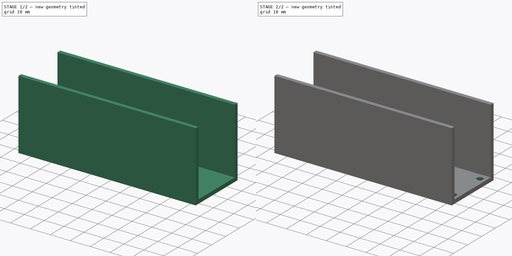
[diagram: build sequence overview — one tinted view per stage of 2, left to right]
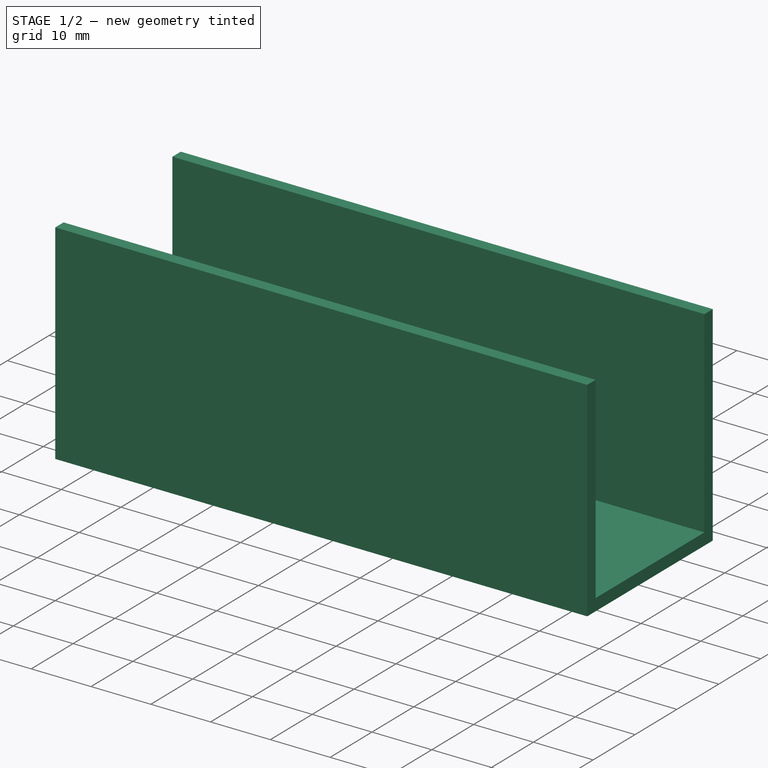
[diagram: stage 1 of 2 — iso view after this stage's code; geometry added in this stage tinted green]
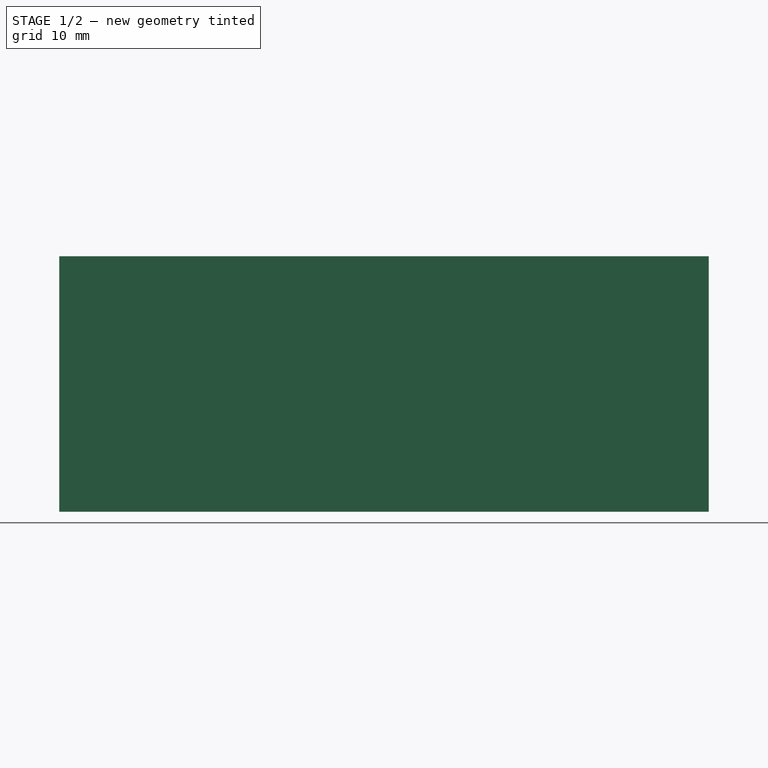
[diagram: stage 1 of 2 — front view after this stage's code; geometry added in this stage tinted green]
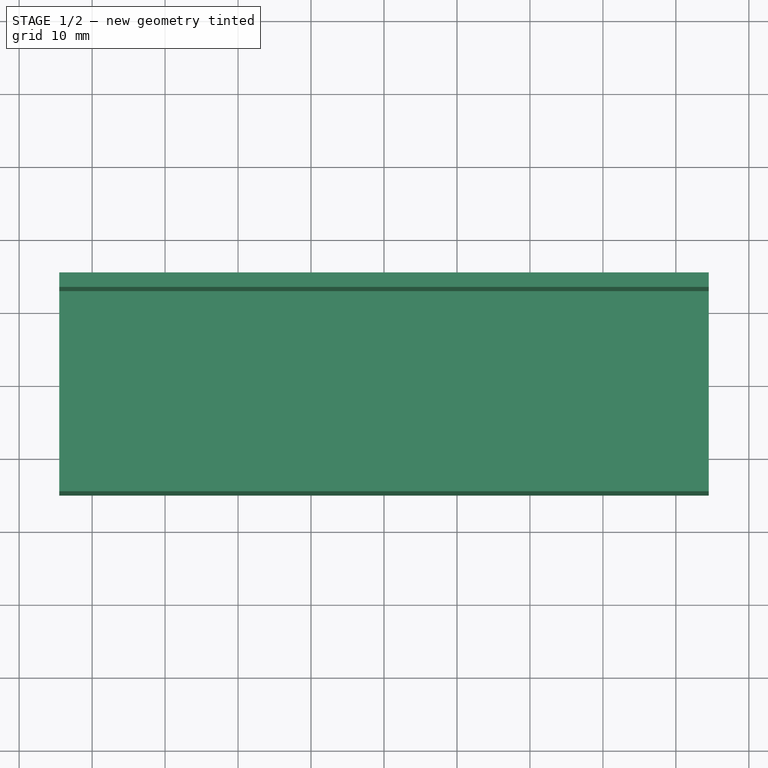
[diagram: stage 1 of 2 — top view after this stage's code; geometry added in this stage tinted green]
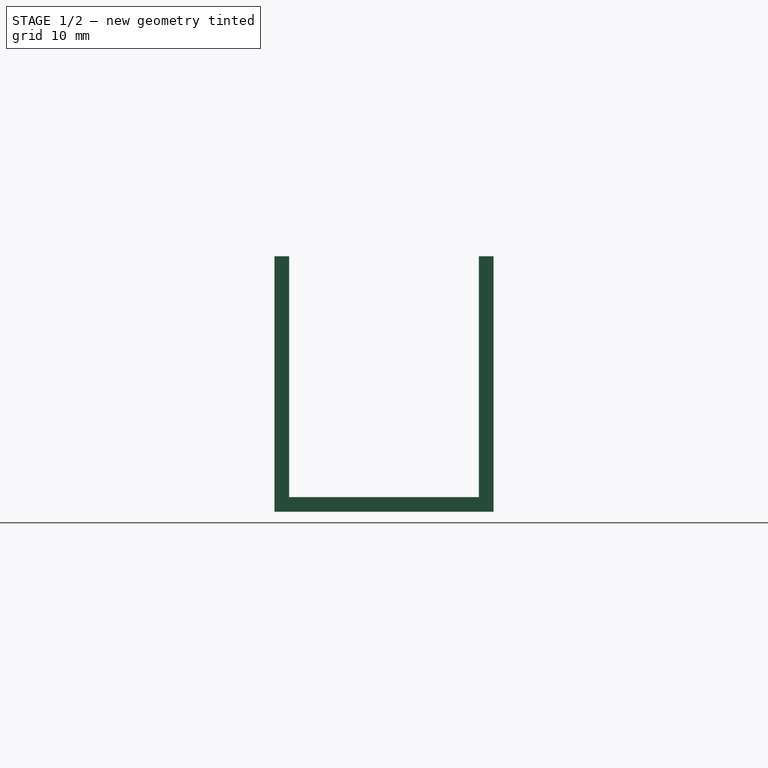
[diagram: stage 1 of 2 — right view after this stage's code; geometry added in this stage tinted green]
FCSTD DOCUMENT  (FreeCAD 0.20R29177 +426 (Git))
Label: cover
License: All rights reserved
LicenseURL: http://en.wikipedia.org/wiki/All_rights_reserved
objects: Sketcher::SketchObject×3, PartDesign::Pad×2, PartDesign::Pocket×1, PartDesign::Chamfer×1, PartDesign::Body×1
note: 12 computed .brp shape members not serialized (recipe doc carries the construction recipe); baked Part::Feature solids carry a one-line shape summary decoded from their .brp

FEATURE [Sketcher::SketchObject] Sketch
  FullyConstrained = true
  MapMode = 5
  Support = -> [XY_Plane]
  sketch-geometry (4):
    g0: LineSegment StartX=-44.5 StartY=15 StartZ=0 EndX=44.5 EndY=15 EndZ=0
    g1: LineSegment StartX=44.5 StartY=15 StartZ=0 EndX=44.5 EndY=-15 EndZ=0
    g2: LineSegment StartX=44.5 StartY=-15 StartZ=0 EndX=-44.5 EndY=-15 EndZ=0
    g3: LineSegment StartX=-44.5 StartY=-15 StartZ=0 EndX=-44.5 EndY=15 EndZ=0
  constraints (12):
    c: Coincident(g0,g1)
    c: Coincident(g1,g2)
    c: Coincident(g2,g3)
    c: Coincident(g3,g0)
    c: Horizontal(g0)
    c: Horizontal(g2)
    c: Vertical(g1)
    c: Vertical(g3)
    c: DistanceX(g0,g0) = 89
    c: DistanceY(g1,g1) = 30
    c: DistanceY(g1,g-1) = 15
    c: DistanceX(g-1,g0) = 44.5
FEATURE [PartDesign::Pad] Pad
  Direction = (0,0,1)
  Length = 2
  Length2 = 10
  Profile = -> Sketch
  ReferenceAxis = -> Sketch [N_Axis]
  Type = 0
FEATURE [Sketcher::SketchObject] Sketch001
  FullyConstrained = true
  MapMode = 5
  Placement = pos=(0,0,2) rot=(0,0,1;0rad)
  Support = -> [Pad]
  sketch-geometry (8):
    g0: LineSegment StartX=-44.5 StartY=15 StartZ=0 EndX=44.5 EndY=15 EndZ=0
    g1: LineSegment StartX=44.5 StartY=15 StartZ=0 EndX=44.5 EndY=13 EndZ=0
    g2: LineSegment StartX=44.5 StartY=13 StartZ=0 EndX=-44.5 EndY=13 EndZ=0
    g3: LineSegment StartX=-44.5 StartY=13 StartZ=0 EndX=-44.5 EndY=15 EndZ=0
    g4: LineSegment StartX=-44.5 StartY=-15 StartZ=0 EndX=44.5 EndY=-15 EndZ=0
    g5: LineSegment StartX=44.5 StartY=-15 StartZ=0 EndX=44.5 EndY=-13 EndZ=0
    g6: LineSegment StartX=44.5 StartY=-13 StartZ=0 EndX=-44.5 EndY=-13 EndZ=0
    g7: LineSegment StartX=-44.5 StartY=-13 StartZ=0 EndX=-44.5 EndY=-15 EndZ=0
  constraints (24):
    c: Coincident(g0,g1)
    c: Coincident(g1,g2)
    c: Coincident(g2,g3)
    c: Coincident(g3,g0)
    c: Horizontal(g0)
    c: Horizontal(g2)
    c: Vertical(g1)
    c: Vertical(g3)
    c: Coincident(g4,g5)
    c: Coincident(g5,g6)
    c: Coincident(g6,g7)
    c: Coincident(g7,g4)
    c: Horizontal(g4)
    c: Horizontal(g6)
    c: Vertical(g5)
    c: Vertical(g7)
    c: DistanceX(g0,g0) = 89
    c: DistanceX(g4,g4) = 89
    c: DistanceX(g2,g-1) = 44.5
    c: DistanceX(g4,g-1) = 44.5
    c: DistanceY(g1,g1) = 2
    c: DistanceY(g5,g5) = 2
    c: DistanceY(g-1,g0) = 15
    c: DistanceY(g4,g-1) = 15
FEATURE [PartDesign::Pad] Pad001
  BaseFeature = -> Pad
  Direction = (0,0,1)
  Length = 33
  Length2 = 10
  Profile = -> Sketch001
  ReferenceAxis = -> Sketch001 [N_Axis]
  Type = 0
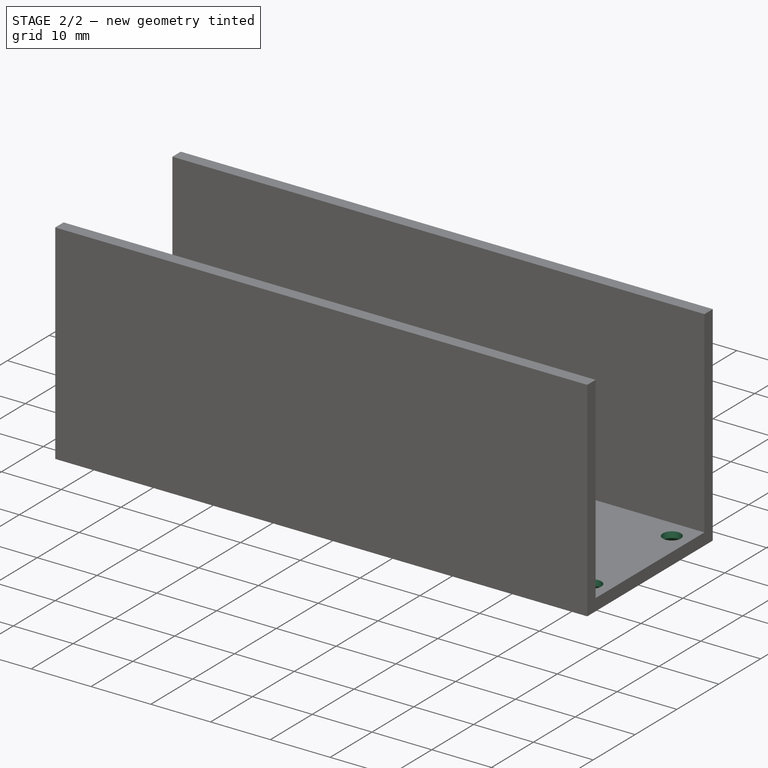
[diagram: stage 2 of 2 — iso view after this stage's code; geometry added in this stage tinted green]
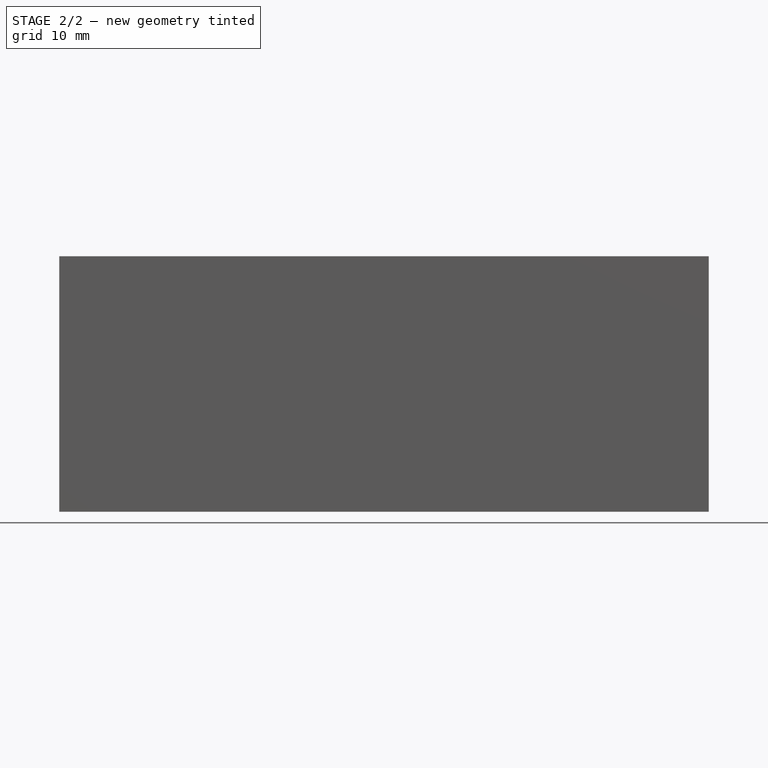
[diagram: stage 2 of 2 — front view after this stage's code; geometry added in this stage tinted green]
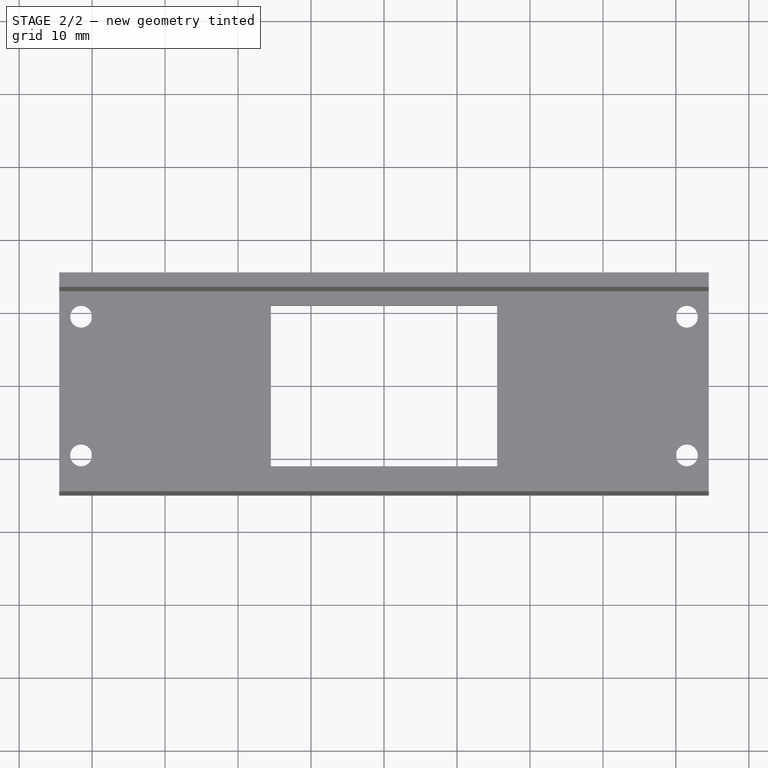
[diagram: stage 2 of 2 — top view after this stage's code; geometry added in this stage tinted green]
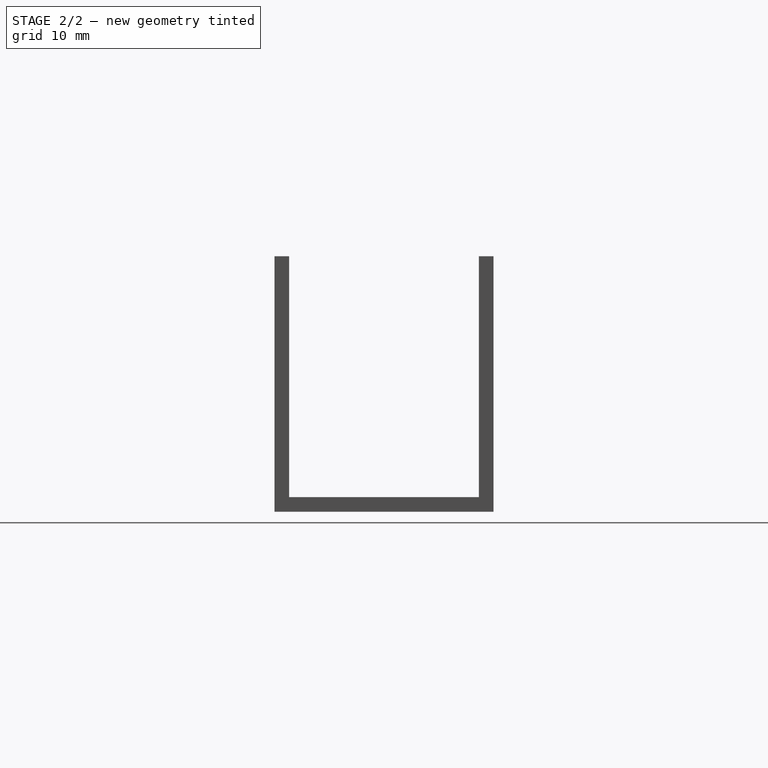
[diagram: stage 2 of 2 — right view after this stage's code; geometry added in this stage tinted green]
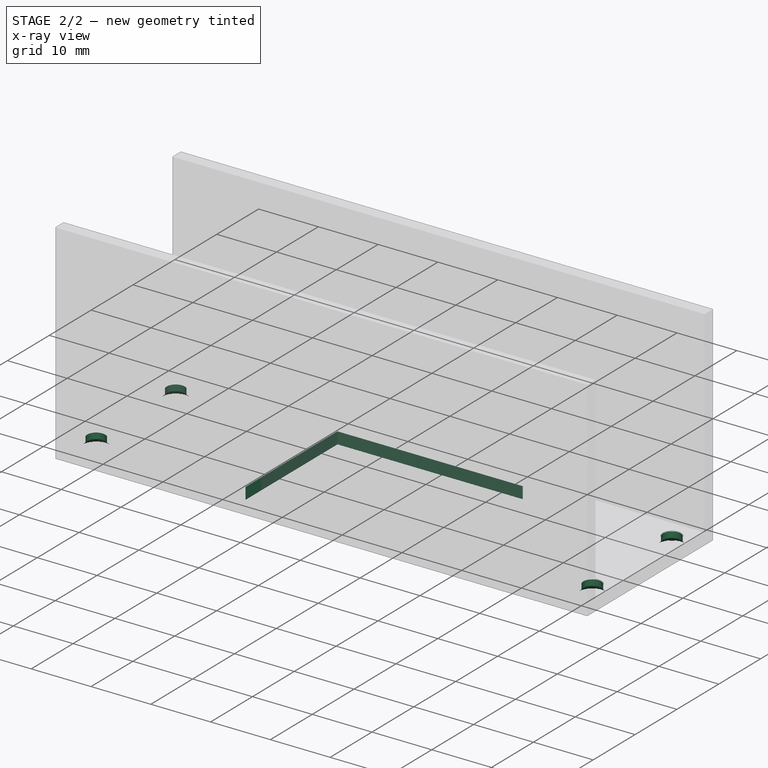
[diagram: stage 2 of 2 — x-ray composite at the iso view; earlier geometry ghosted, this stage's added geometry solid]
FEATURE [Sketcher::SketchObject] Sketch002
  FullyConstrained = true
  MapMode = 5
  Placement = pos=(0,0,2) rot=(0,0,1;0rad)
  Support = -> [Pad001]
  sketch-geometry (8):
    g0: LineSegment StartX=-15.5 StartY=11 StartZ=0 EndX=15.5 EndY=11 EndZ=0
    g1: LineSegment StartX=15.5 StartY=11 StartZ=0 EndX=15.5 EndY=-11 EndZ=0
    g2: LineSegment StartX=15.5 StartY=-11 StartZ=0 EndX=-15.5 EndY=-11 EndZ=0
    g3: LineSegment StartX=-15.5 StartY=-11 StartZ=0 EndX=-15.5 EndY=11 EndZ=0
    g4: Circle CenterX=41.5 CenterY=9.5 CenterZ=0 NormalX=0 NormalY=0 NormalZ=1 AngleXU=0 Radius=1.5
    g5: Circle CenterX=41.5 CenterY=-9.5 CenterZ=0 NormalX=0 NormalY=0 NormalZ=1 AngleXU=0 Radius=1.5
    g6: Circle CenterX=-41.5 CenterY=-9.5 CenterZ=0 NormalX=0 NormalY=0 NormalZ=1 AngleXU=0 Radius=1.5
    g7: Circle CenterX=-41.5 CenterY=9.5 CenterZ=0 NormalX=0 NormalY=0 NormalZ=1 AngleXU=0 Radius=1.5
  constraints (24):
    c: Coincident(g0,g1)
    c: Coincident(g1,g2)
    c: Coincident(g2,g3)
    c: Coincident(g3,g0)
    c: Horizontal(g0)
    c: Horizontal(g2)
    c: Vertical(g1)
    c: Vertical(g3)
    c: DistanceY(g1,g1) = 22
    c: DistanceX(g0,g0) = 31
    c: DistanceY(g5,g4) = 19
    c: DistanceY(g6,g7) = 19
    c: DistanceX(g-1,g4) = 41.5
    c: Vertical(g4,g5)
    c: Vertical(g7,g6)
    c: DistanceX(g7,g-1) = 41.5
    c: Diameter(g7) = 3
    c: Diameter(g6) = 3
    c: Diameter(g5) = 3
    c: Diameter(g4) = 3
    c: DistanceY(g-1,g4) = 9.5
    c: DistanceY(g-1,g7) = 9.5
    c: DistanceX(g0,g-1) = 15.5
    c: DistanceY(g1,g-1) = 11
FEATURE [PartDesign::Pocket] Pocket
  BaseFeature = -> Pad001
  Direction = (0,0,-1)
  Length = 5
  Length2 = 5
  Profile = -> Sketch002
  ReferenceAxis = -> Sketch002 [N_Axis]
  Type = 2
FEATURE [PartDesign::Chamfer] Chamfer
  Angle = 45
  Base = -> Pocket [Edge18,Edge16,Edge17,Edge23]
  BaseFeature = -> Pocket
  ChamferType = 0
  FlipDirection = false
  Size = 1
  Size2 = 1
  SupportTransform = false
  UseAllEdges = false
FEATURE [PartDesign::Body] Body
  Group = -> [Sketch,Pad,Sketch001,Pad001,Sketch002,Pocket,Chamfer]
  Origin = -> Origin
  Tip = -> Chamfer
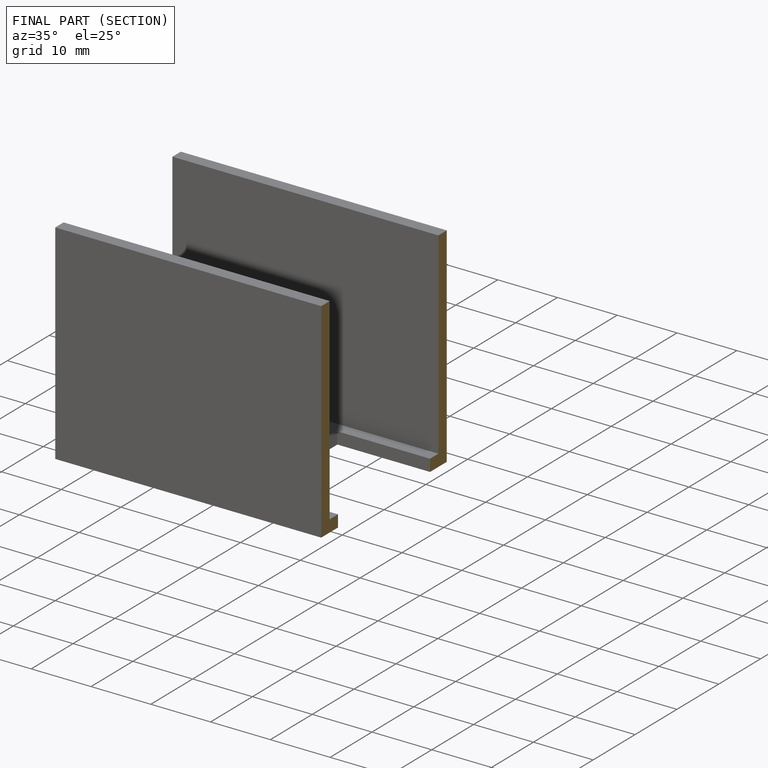
[diagram: finished part — half-section view (interior)]
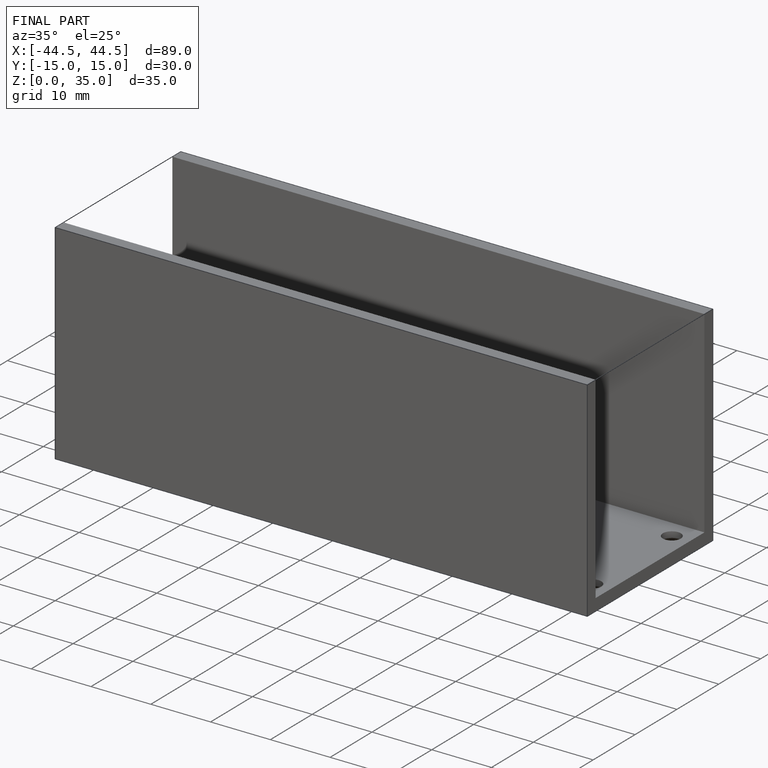
[diagram: finished part — iso view with bounding-box wireframe]
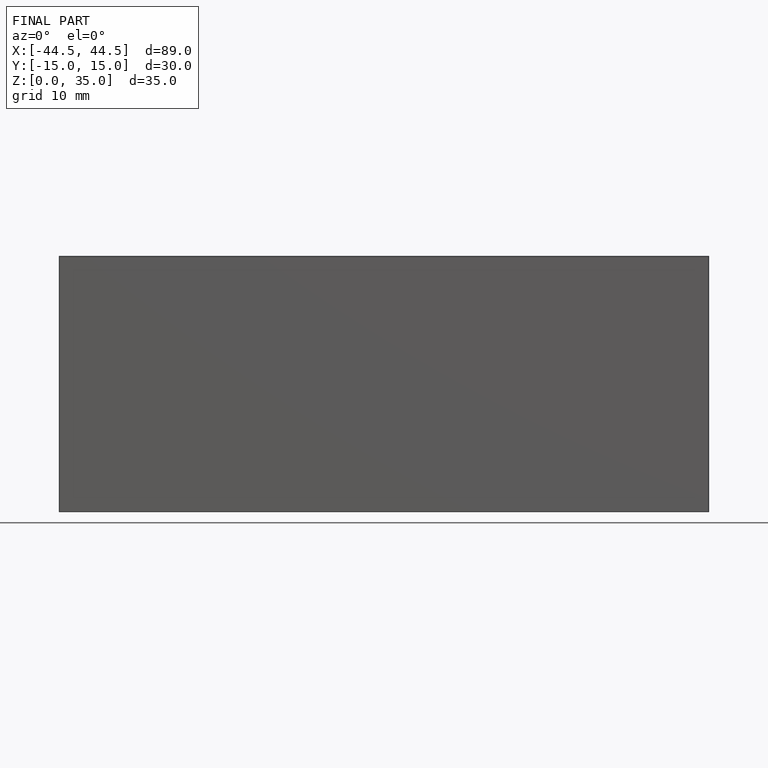
[diagram: finished part — front view with bounding-box wireframe]
